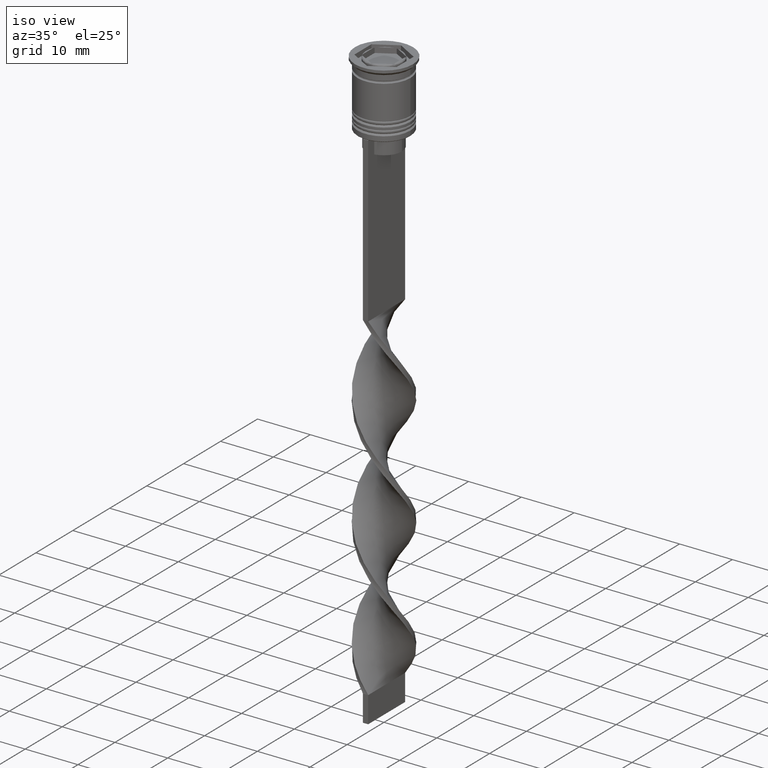
[diagram: clean part render]
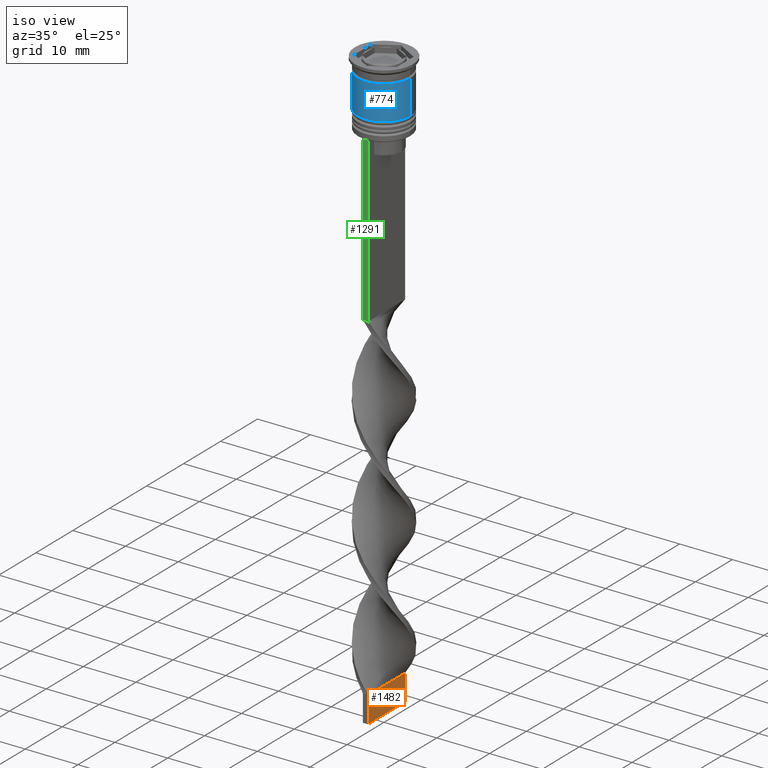
[diagram: same view with three faces highlighted in distinct colors, each labeled with its STEP entity id]
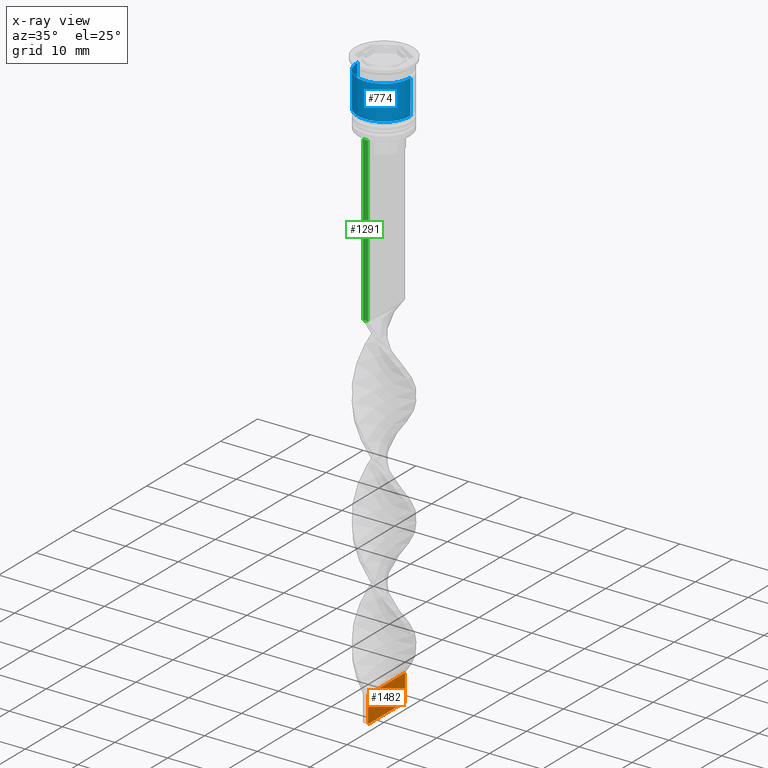
[diagram: x-ray of the same camera — body ghosted, the three highlighted faces saturated]
A machine part, iso view with three faces highlighted in distinct colors.
The next image is the same camera in x-ray (body ghosted, the three faces saturated) — at least one of them is partly hidden behind the body in this view.
Their STEP definitions:

[orange] entity #1482 — the highlighted planar face has unit normal (-1, 0, 0).
#56 = EDGE_LOOP ( 'NONE', ( #1559, #2204, #2877, #2422 ) ) ;
#297 = CARTESIAN_POINT ( 'NONE',  ( 0.5000000000000002220, 1.666666666666666075, -107.5000000000000000 ) ) ;
#382 = CARTESIAN_POINT ( 'NONE',  ( 0.5000000000000006661, 4.999999999999999112, -112.5000000000000000 ) ) ;
#703 = VECTOR ( 'NONE', #2208, 1000.000000000000000 ) ;
#731 = CARTESIAN_POINT ( 'NONE',  ( 0.5000000000000006661, 4.999999999999999112, -107.5000000000000000 ) ) ;
#776 = LINE ( 'NONE', #3396, #703 ) ;
#836 = CARTESIAN_POINT ( 'NONE',  ( 0.4999999999999993339, -5.000000000000000888, -107.5000000000000000 ) ) ;
#1086 = CARTESIAN_POINT ( 'NONE',  ( 0.4999999999999993339, -5.000000000000000888, -107.5000000000000000 ) ) ;
#1463 = CARTESIAN_POINT ( 'NONE',  ( 0.5000000000000006661, 4.999999999999999112, -112.5000000000000000 ) ) ;
#1482 = ADVANCED_FACE ( 'NONE', ( #2442 ), #3575, .F. ) ;
#1532 = DIRECTION ( 'NONE',  ( -1.301042606982605321E-16, -1.000000000000000000, 0.000000000000000000 ) ) ;
#1559 = ORIENTED_EDGE ( 'NONE', *, *, #3244, .T. ) ;
#1652 = VECTOR ( 'NONE', #3133, 1000.000000000000000 ) ;
#1759 = EDGE_CURVE ( 'NONE', #2663, #2218, #776, .T. ) ;
#1797 = CARTESIAN_POINT ( 'NONE',  ( 0.5000000000000006661, 4.999999999999999112, -112.5000000000000000 ) ) ;
#1912 = CARTESIAN_POINT ( 'NONE',  ( 0.5000000000000006661, 4.999999999999999112, -107.5000000000000000 ) ) ;
#1985 = LINE ( 'NONE', #2527, #1652 ) ;
#2136 = VERTEX_POINT ( 'NONE', #731 ) ;
#2204 = ORIENTED_EDGE ( 'NONE', *, *, #2450, .F. ) ;
#2208 = DIRECTION ( 'NONE',  ( -1.301042606982605321E-16, -1.000000000000000000, 0.000000000000000000 ) ) ;
#2218 = VERTEX_POINT ( 'NONE', #2732 ) ;
#2268 = B_SPLINE_CURVE_WITH_KNOTS ( 'NONE', 3,
 ( #1912, #297, #3346, #1086 ),
 .UNSPECIFIED., .F., .F.,
 ( 4, 4 ),
 ( 0.000000000000000000, 1.000000000000000000 ),
 .UNSPECIFIED. ) ;
#2308 = VECTOR ( 'NONE', #2609, 1000.000000000000000 ) ;
#2360 = AXIS2_PLACEMENT_3D ( 'NONE', #382, #3503, #1532 ) ;
#2422 = ORIENTED_EDGE ( 'NONE', *, *, #2660, .T. ) ;
#2442 = FACE_OUTER_BOUND ( 'NONE', #56, .T. ) ;
#2450 = EDGE_CURVE ( 'NONE', #2218, #2451, #1985, .T. ) ;
#2451 = VERTEX_POINT ( 'NONE', #836 ) ;
#2527 = CARTESIAN_POINT ( 'NONE',  ( 0.4999999999999993339, -5.000000000000000888, -112.5000000000000000 ) ) ;
#2609 = DIRECTION ( 'NONE',  ( -0.000000000000000000, -0.000000000000000000, 1.000000000000000000 ) ) ;
#2655 = LINE ( 'NONE', #1463, #2308 ) ;
#2660 = EDGE_CURVE ( 'NONE', #2663, #2136, #2655, .T. ) ;
#2663 = VERTEX_POINT ( 'NONE', #1797 ) ;
#2732 = CARTESIAN_POINT ( 'NONE',  ( 0.4999999999999993339, -5.000000000000000888, -112.5000000000000000 ) ) ;
#2877 = ORIENTED_EDGE ( 'NONE', *, *, #1759, .F. ) ;
#3133 = DIRECTION ( 'NONE',  ( -0.000000000000000000, -0.000000000000000000, 1.000000000000000000 ) ) ;
#3244 = EDGE_CURVE ( 'NONE', #2136, #2451, #2268, .T. ) ;
#3346 = CARTESIAN_POINT ( 'NONE',  ( 0.4999999999999997780, -1.666666666666667851, -107.5000000000000000 ) ) ;
#3396 = CARTESIAN_POINT ( 'NONE',  ( 0.5000000000000006661, 4.999999999999999112, -112.5000000000000000 ) ) ;
#3503 = DIRECTION ( 'NONE',  ( -1.000000000000000000, 1.301042606982605321E-16, 0.000000000000000000 ) ) ;
#3575 = PLANE ( 'NONE',  #2360 ) ;

[blue] entity #774 — the highlighted cylindrical surface (edge-blend (fillet) strip) has radius 5 mm, axis along (-0, -0, 1).
#79 = DIRECTION ( 'NONE',  ( 1.000000000000000000, 0.000000000000000000, 0.000000000000000000 ) ) ;
#246 = DIRECTION ( 'NONE',  ( 1.000000000000000000, 0.000000000000000000, 0.000000000000000000 ) ) ;
#333 = DIRECTION ( 'NONE',  ( -0.000000000000000000, -0.000000000000000000, 1.000000000000000000 ) ) ;
#344 = VERTEX_POINT ( 'NONE', #1213 ) ;
#543 = LINE ( 'NONE', #1095, #3141 ) ;
#552 = CARTESIAN_POINT ( 'NONE',  ( 0.000000000000000000, 0.000000000000000000, -9.000000000000001776 ) ) ;
#585 = CIRCLE ( 'NONE', #1115, 5.000000000000000888 ) ;
#658 = ORIENTED_EDGE ( 'NONE', *, *, #702, .T. ) ;
#702 = EDGE_CURVE ( 'NONE', #1898, #1235, #585, .T. ) ;
#774 = ADVANCED_FACE ( 'NONE', ( #3317 ), #2937, .T. ) ;
#904 = VERTEX_POINT ( 'NONE', #3399 ) ;
#980 = CARTESIAN_POINT ( 'NONE',  ( 0.000000000000000000, 0.000000000000000000, 0.000000000000000000 ) ) ;
#1095 = CARTESIAN_POINT ( 'NONE',  ( 5.000000000000000000, 0.000000000000000000, 0.000000000000000000 ) ) ;
#1101 = CARTESIAN_POINT ( 'NONE',  ( 5.000000000000000888, 0.000000000000000000, -9.000000000000001776 ) ) ;
#1115 = AXIS2_PLACEMENT_3D ( 'NONE', #552, #1945, #246 ) ;
#1120 = ORIENTED_EDGE ( 'NONE', *, *, #3427, .F. ) ;
#1213 = CARTESIAN_POINT ( 'NONE',  ( -4.999999999999999112, 6.123233995736766282E-16, -2.500000000000000000 ) ) ;
#1235 = VERTEX_POINT ( 'NONE', #1101 ) ;
#1303 = AXIS2_PLACEMENT_3D ( 'NONE', #1434, #333, #79 ) ;
#1357 = AXIS2_PLACEMENT_3D ( 'NONE', #980, #2404, #2742 ) ;
#1434 = CARTESIAN_POINT ( 'NONE',  ( 0.000000000000000000, 0.000000000000000000, -2.500000000000000000 ) ) ;
#1616 = ORIENTED_EDGE ( 'NONE', *, *, #2383, .T. ) ;
#1898 = VERTEX_POINT ( 'NONE', #2103 ) ;
#1945 = DIRECTION ( 'NONE',  ( -0.000000000000000000, -0.000000000000000000, 1.000000000000000000 ) ) ;
#2052 = EDGE_CURVE ( 'NONE', #1898, #344, #3414, .T. ) ;
#2103 = CARTESIAN_POINT ( 'NONE',  ( -5.000000000000000888, 6.123233995736767268E-16, -9.000000000000001776 ) ) ;
#2154 = EDGE_LOOP ( 'NONE', ( #3618, #658, #1616, #1120 ) ) ;
#2383 = EDGE_CURVE ( 'NONE', #1235, #904, #543, .T. ) ;
#2404 = DIRECTION ( 'NONE',  ( -0.000000000000000000, -0.000000000000000000, 1.000000000000000000 ) ) ;
#2547 = DIRECTION ( 'NONE',  ( -0.000000000000000000, -0.000000000000000000, 1.000000000000000000 ) ) ;
#2742 = DIRECTION ( 'NONE',  ( 1.000000000000000000, 0.000000000000000000, 0.000000000000000000 ) ) ;
#2905 = CIRCLE ( 'NONE', #1303, 4.999999999999999112 ) ;
#2937 = CYLINDRICAL_SURFACE ( 'NONE', #1357, 5.000000000000000000 ) ;
#3125 = CARTESIAN_POINT ( 'NONE',  ( -5.000000000000000000, 6.123233995736766282E-16, 0.000000000000000000 ) ) ;
#3141 = VECTOR ( 'NONE', #2547, 1000.000000000000000 ) ;
#3315 = VECTOR ( 'NONE', #3431, 1000.000000000000000 ) ;
#3317 = FACE_OUTER_BOUND ( 'NONE', #2154, .T. ) ;
#3399 = CARTESIAN_POINT ( 'NONE',  ( 4.999999999999999112, 0.000000000000000000, -2.500000000000000000 ) ) ;
#3414 = LINE ( 'NONE', #3125, #3315 ) ;
#3427 = EDGE_CURVE ( 'NONE', #344, #904, #2905, .T. ) ;
#3431 = DIRECTION ( 'NONE',  ( -0.000000000000000000, -0.000000000000000000, 1.000000000000000000 ) ) ;
#3618 = ORIENTED_EDGE ( 'NONE', *, *, #2052, .F. ) ;

[green] entity #1291 — the highlighted planar face has unit normal (0, -1, -0).
#10 = EDGE_CURVE ( 'NONE', #1476, #2890, #869, .T. ) ;
#23 = LINE ( 'NONE', #2347, #2772 ) ;
#180 = ORIENTED_EDGE ( 'NONE', *, *, #512, .F. ) ;
#340 = DIRECTION ( 'NONE',  ( 0.000000000000000000, 0.000000000000000000, -1.000000000000000000 ) ) ;
#403 = CARTESIAN_POINT ( 'NONE',  ( 0.5000000000000000000, -4.999999999999999112, -43.50000000000000000 ) ) ;
#414 = EDGE_LOOP ( 'NONE', ( #665, #708, #3568, #180 ) ) ;
#462 = EDGE_CURVE ( 'NONE', #2587, #2890, #1639, .T. ) ;
#512 = EDGE_CURVE ( 'NONE', #3636, #2587, #23, .T. ) ;
#537 = CARTESIAN_POINT ( 'NONE',  ( 0.5000000000000000000, -4.999999999999999112, -43.50000000000000000 ) ) ;
#559 = LINE ( 'NONE', #3078, #1584 ) ;
#579 = DIRECTION ( 'NONE',  ( 1.000000000000000000, 0.000000000000000000, 0.000000000000000000 ) ) ;
#665 = ORIENTED_EDGE ( 'NONE', *, *, #960, .F. ) ;
#708 = ORIENTED_EDGE ( 'NONE', *, *, #10, .T. ) ;
#869 = LINE ( 'NONE', #2062, #1478 ) ;
#877 = VECTOR ( 'NONE', #2779, 1000.000000000000000 ) ;
#886 = DIRECTION ( 'NONE',  ( 0.000000000000000000, 0.000000000000000000, -1.000000000000000000 ) ) ;
#946 = DIRECTION ( 'NONE',  ( 0.000000000000000000, -1.000000000000000000, -0.000000000000000000 ) ) ;
#960 = EDGE_CURVE ( 'NONE', #1476, #3636, #559, .T. ) ;
#1291 = ADVANCED_FACE ( 'NONE', ( #2244 ), #3086, .T. ) ;
#1403 = CARTESIAN_POINT ( 'NONE',  ( 0.5000000000000000000, -4.999999999999999112, -12.50000000000000000 ) ) ;
#1476 = VERTEX_POINT ( 'NONE', #1700 ) ;
#1478 = VECTOR ( 'NONE', #340, 1000.000000000000000 ) ;
#1584 = VECTOR ( 'NONE', #579, 1000.000000000000000 ) ;
#1639 = LINE ( 'NONE', #537, #877 ) ;
#1700 = CARTESIAN_POINT ( 'NONE',  ( -0.5000000000000000000, -4.999999999999999112, -12.50000000000000000 ) ) ;
#2062 = CARTESIAN_POINT ( 'NONE',  ( -0.5000000000000000000, -4.999999999999999112, -2.450124378879110054 ) ) ;
#2244 = FACE_OUTER_BOUND ( 'NONE', #414, .T. ) ;
#2282 = CARTESIAN_POINT ( 'NONE',  ( 0.5000000000000000000, -4.999999999999999112, -2.450124378879110054 ) ) ;
#2347 = CARTESIAN_POINT ( 'NONE',  ( 0.5000000000000000000, -4.999999999999999112, -2.450124378879110054 ) ) ;
#2587 = VERTEX_POINT ( 'NONE', #403 ) ;
#2772 = VECTOR ( 'NONE', #886, 1000.000000000000000 ) ;
#2779 = DIRECTION ( 'NONE',  ( -1.000000000000000000, 0.000000000000000000, 0.000000000000000000 ) ) ;
#2890 = VERTEX_POINT ( 'NONE', #3184 ) ;
#3068 = AXIS2_PLACEMENT_3D ( 'NONE', #2282, #946, #3391 ) ;
#3078 = CARTESIAN_POINT ( 'NONE',  ( 0.5000000000000000000, -4.999999999999999112, -12.50000000000000000 ) ) ;
#3086 = PLANE ( 'NONE',  #3068 ) ;
#3184 = CARTESIAN_POINT ( 'NONE',  ( -0.5000000000000000000, -4.999999999999999112, -43.50000000000000000 ) ) ;
#3391 = DIRECTION ( 'NONE',  ( 0.000000000000000000, 0.000000000000000000, -1.000000000000000000 ) ) ;
#3568 = ORIENTED_EDGE ( 'NONE', *, *, #462, .F. ) ;
#3636 = VERTEX_POINT ( 'NONE', #1403 ) ;